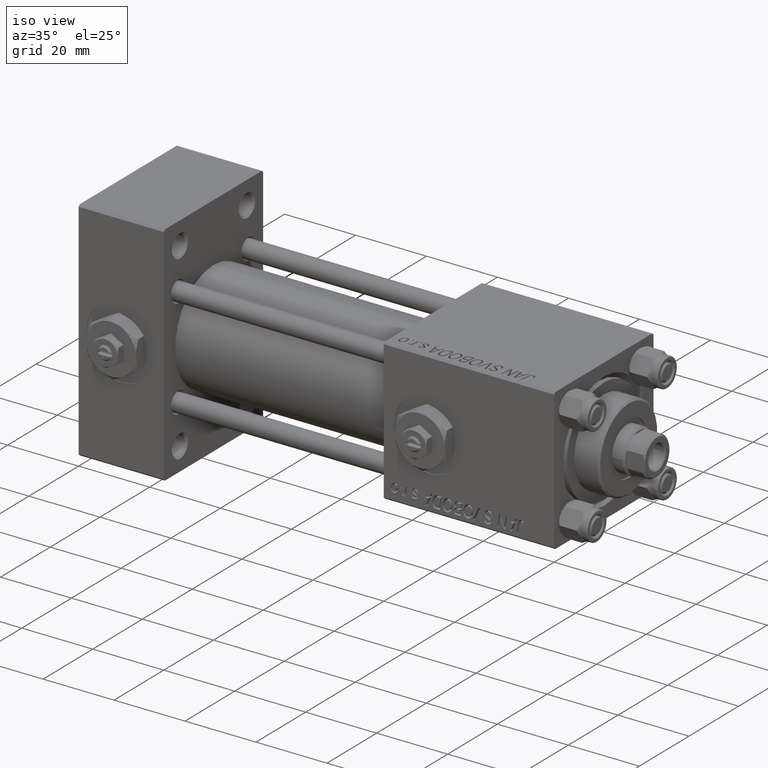
[diagram: clean part render]
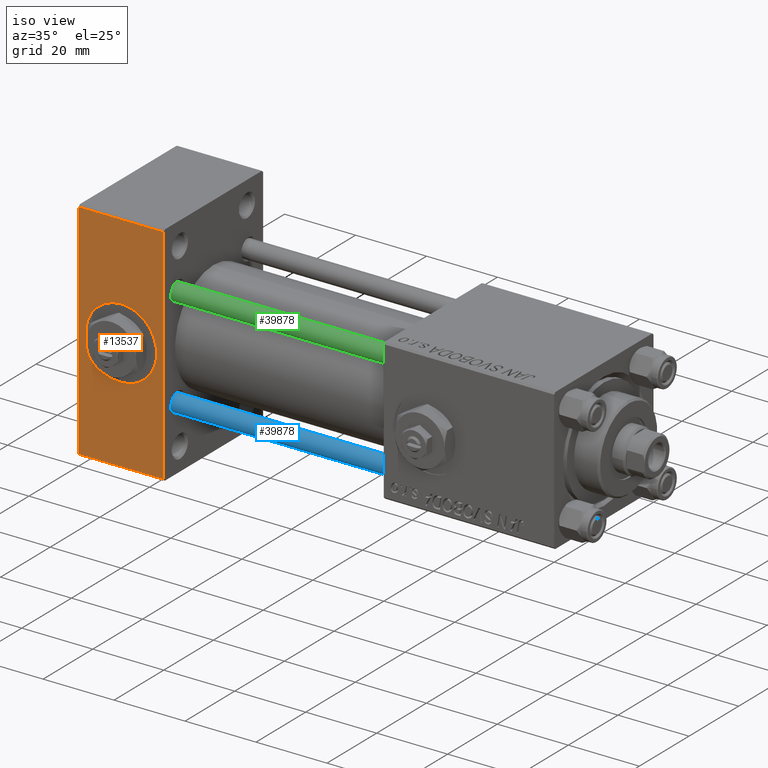
[diagram: same view with three faces highlighted in distinct colors, each labeled with its STEP entity id]
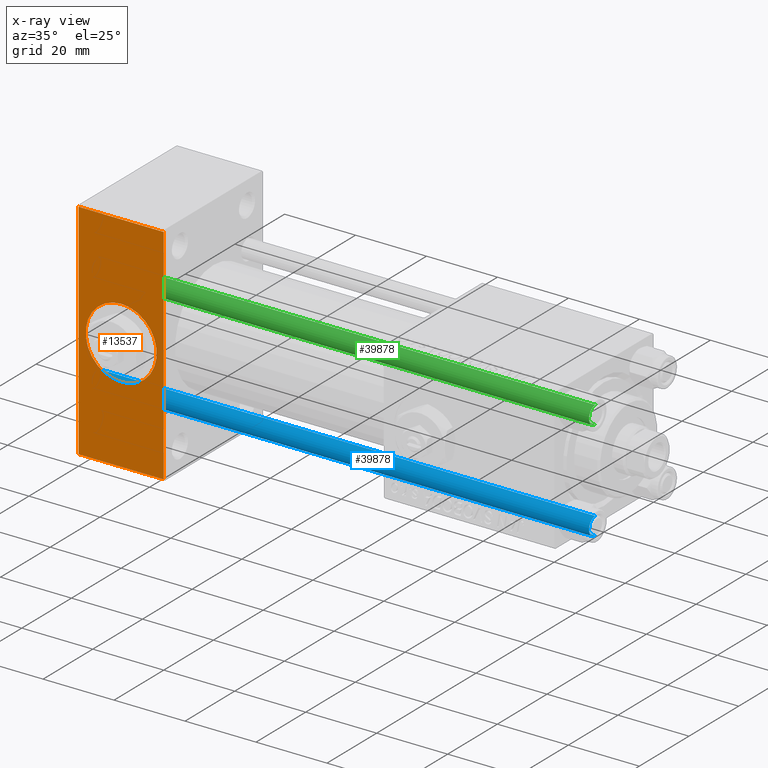
[diagram: x-ray of the same camera — body ghosted, the three highlighted faces saturated]
A machine part, iso view with three faces highlighted in distinct colors.
The next image is the same camera in x-ray (body ghosted, the three faces saturated) — at least one of them is partly hidden behind the body in this view.
Their STEP definitions:

[orange] entity #13537 — the highlighted planar face has unit normal (0, 1, 0).
#81 = VECTOR ( 'NONE', #45482, 1000.000000000000000 ) ;
#1254 = FACE_BOUND ( 'NONE', #21368, .T. ) ;
#2098 = ORIENTED_EDGE ( 'NONE', *, *, #17185, .F. ) ;
#3009 = DIRECTION ( 'NONE',  ( 1.000000000000000000, 0.000000000000000000, 0.000000000000000000 ) ) ;
#4878 = EDGE_CURVE ( 'NONE', #16969, #24132, #29476, .T. ) ;
#5906 = CIRCLE ( 'NONE', #48660, 9.999999999999996447 ) ;
#7896 = CARTESIAN_POINT ( 'NONE',  ( 24.00000000000000000, -20.00000000000000355, -31.49999999999997158 ) ) ;
#8087 = DIRECTION ( 'NONE',  ( 0.000000000000000000, 0.000000000000000000, -1.000000000000000000 ) ) ;
#8380 = DIRECTION ( 'NONE',  ( 0.000000000000000000, -1.000000000000000000, -8.673617379884036705E-17 ) ) ;
#8387 = EDGE_CURVE ( 'NONE', #16969, #45608, #36381, .T. ) ;
#9762 = ORIENTED_EDGE ( 'NONE', *, *, #8387, .F. ) ;
#10147 = FACE_OUTER_BOUND ( 'NONE', #31763, .T. ) ;
#10228 = CARTESIAN_POINT ( 'NONE',  ( 0.000000000000000000, -20.00000000000000355, 32.00000000000000000 ) ) ;
#10599 = VERTEX_POINT ( 'NONE', #50744 ) ;
#12192 = VECTOR ( 'NONE', #46454, 1000.000000000000000 ) ;
#12263 = AXIS2_PLACEMENT_3D ( 'NONE', #31966, #44040, #8087 ) ;
#12557 = ORIENTED_EDGE ( 'NONE', *, *, #33311, .T. ) ;
#13307 = PLANE ( 'NONE',  #27179 ) ;
#13537 = ADVANCED_FACE ( 'NONE', ( #1254, #10147 ), #13307, .F. ) ;
#15673 = CARTESIAN_POINT ( 'NONE',  ( 24.00000000000000000, -20.00000000000000355, 32.00000000000000000 ) ) ;
#16969 = VERTEX_POINT ( 'NONE', #50108 ) ;
#16974 = CARTESIAN_POINT ( 'NONE',  ( 12.00000000000000178, -20.00000000000000355, 9.999999999999996447 ) ) ;
#17185 = EDGE_CURVE ( 'NONE', #10599, #38393, #37401, .T. ) ;
#21368 = EDGE_LOOP ( 'NONE', ( #2098, #37546 ) ) ;
#22230 = LINE ( 'NONE', #38249, #38689 ) ;
#22980 = ORIENTED_EDGE ( 'NONE', *, *, #45755, .T. ) ;
#23536 = DIRECTION ( 'NONE',  ( 0.000000000000000000, 0.000000000000000000, -1.000000000000000000 ) ) ;
#24132 = VERTEX_POINT ( 'NONE', #30154 ) ;
#25789 = CARTESIAN_POINT ( 'NONE',  ( 24.00000000000000000, -20.00000000000000355, 31.50000000000000711 ) ) ;
#27179 = AXIS2_PLACEMENT_3D ( 'NONE', #41913, #29320, #37462 ) ;
#29320 = DIRECTION ( 'NONE',  ( -0.000000000000000000, 1.000000000000000000, 0.000000000000000000 ) ) ;
#29476 = LINE ( 'NONE', #25789, #81 ) ;
#30154 = CARTESIAN_POINT ( 'NONE',  ( 0.000000000000000000, -20.00000000000000355, 31.50000000000000711 ) ) ;
#30277 = EDGE_CURVE ( 'NONE', #38393, #10599, #5906, .T. ) ;
#31763 = EDGE_LOOP ( 'NONE', ( #22980, #12557, #9762, #33598 ) ) ;
#31966 = CARTESIAN_POINT ( 'NONE',  ( 12.00000000000000000, -20.00000000000000355, 0.000000000000000000 ) ) ;
#32210 = VERTEX_POINT ( 'NONE', #32543 ) ;
#32543 = CARTESIAN_POINT ( 'NONE',  ( 0.000000000000000000, -20.00000000000000355, -31.49999999999997158 ) ) ;
#32783 = DIRECTION ( 'NONE',  ( 0.000000000000000000, 0.000000000000000000, -1.000000000000000000 ) ) ;
#33311 = EDGE_CURVE ( 'NONE', #32210, #45608, #22230, .T. ) ;
#33598 = ORIENTED_EDGE ( 'NONE', *, *, #4878, .T. ) ;
#36381 = LINE ( 'NONE', #15673, #45454 ) ;
#37401 = CIRCLE ( 'NONE', #12263, 9.999999999999996447 ) ;
#37462 = DIRECTION ( 'NONE',  ( 0.000000000000000000, -0.000000000000000000, 1.000000000000000000 ) ) ;
#37546 = ORIENTED_EDGE ( 'NONE', *, *, #30277, .F. ) ;
#38249 = CARTESIAN_POINT ( 'NONE',  ( 24.00000000000000000, -20.00000000000000355, -31.49999999999997158 ) ) ;
#38393 = VERTEX_POINT ( 'NONE', #16974 ) ;
#38689 = VECTOR ( 'NONE', #3009, 1000.000000000000000 ) ;
#41913 = CARTESIAN_POINT ( 'NONE',  ( 24.00000000000000000, -20.00000000000000355, 32.00000000000000000 ) ) ;
#44040 = DIRECTION ( 'NONE',  ( 0.000000000000000000, -1.000000000000000000, -8.673617379884036705E-17 ) ) ;
#45454 = VECTOR ( 'NONE', #23536, 1000.000000000000000 ) ;
#45482 = DIRECTION ( 'NONE',  ( -1.000000000000000000, 0.000000000000000000, 0.000000000000000000 ) ) ;
#45608 = VERTEX_POINT ( 'NONE', #7896 ) ;
#45755 = EDGE_CURVE ( 'NONE', #24132, #32210, #45931, .T. ) ;
#45931 = LINE ( 'NONE', #10228, #12192 ) ;
#46454 = DIRECTION ( 'NONE',  ( 0.000000000000000000, 0.000000000000000000, -1.000000000000000000 ) ) ;
#48287 = CARTESIAN_POINT ( 'NONE',  ( 12.00000000000000000, -20.00000000000000355, 0.000000000000000000 ) ) ;
#48660 = AXIS2_PLACEMENT_3D ( 'NONE', #48287, #8380, #32783 ) ;
#50108 = CARTESIAN_POINT ( 'NONE',  ( 24.00000000000000000, -20.00000000000000355, 31.50000000000000711 ) ) ;
#50744 = CARTESIAN_POINT ( 'NONE',  ( 12.00000000000000000, -20.00000000000000355, -9.999999999999996447 ) ) ;

[blue] entity #39878 — the highlighted cylindrical surface (edge-blend (fillet) strip) has radius 2.5 mm, axis along (1, -0, -0).
#5183 = CARTESIAN_POINT ( 'NONE',  ( -2.500000000000000000, 0.000000000000000000, 0.5000000000000004441 ) ) ;
#7014 = CARTESIAN_POINT ( 'NONE',  ( -2.500000000000000000, 0.000000000000000000, 140.5000000000000000 ) ) ;
#7045 = DIRECTION ( 'NONE',  ( 0.000000000000000000, 0.000000000000000000, -1.000000000000000000 ) ) ;
#8292 = VERTEX_POINT ( 'NONE', #7014 ) ;
#8374 = ORIENTED_EDGE ( 'NONE', *, *, #17544, .T. ) ;
#8479 = CARTESIAN_POINT ( 'NONE',  ( 2.500000000000000000, 3.061616997868383141E-16, 141.0000000000000000 ) ) ;
#9756 = DIRECTION ( 'NONE',  ( -0.000000000000000000, -0.000000000000000000, -1.000000000000000000 ) ) ;
#10972 = CARTESIAN_POINT ( 'NONE',  ( 0.000000000000000000, 0.000000000000000000, 140.5000000000000000 ) ) ;
#11123 = CARTESIAN_POINT ( 'NONE',  ( -2.500000000000000000, 0.000000000000000000, 141.0000000000000000 ) ) ;
#12349 = EDGE_CURVE ( 'NONE', #14977, #13460, #12933, .T. ) ;
#12933 = LINE ( 'NONE', #8479, #48074 ) ;
#13394 = VERTEX_POINT ( 'NONE', #5183 ) ;
#13460 = VERTEX_POINT ( 'NONE', #49014 ) ;
#14091 = ORIENTED_EDGE ( 'NONE', *, *, #43916, .T. ) ;
#14977 = VERTEX_POINT ( 'NONE', #26302 ) ;
#17544 = EDGE_CURVE ( 'NONE', #13394, #13460, #49127, .T. ) ;
#19683 = ORIENTED_EDGE ( 'NONE', *, *, #12349, .F. ) ;
#26302 = CARTESIAN_POINT ( 'NONE',  ( 2.500000000000000000, 3.061616997868383141E-16, 140.5000000000000000 ) ) ;
#27228 = CIRCLE ( 'NONE', #50682, 2.500000000000000000 ) ;
#29251 = CARTESIAN_POINT ( 'NONE',  ( 0.000000000000000000, 0.000000000000000000, 0.5000000000000004441 ) ) ;
#30601 = VECTOR ( 'NONE', #51034, 1000.000000000000000 ) ;
#31715 = DIRECTION ( 'NONE',  ( 1.000000000000000000, 0.000000000000000000, 0.000000000000000000 ) ) ;
#33193 = DIRECTION ( 'NONE',  ( -0.000000000000000000, -0.000000000000000000, 1.000000000000000000 ) ) ;
#34151 = CARTESIAN_POINT ( 'NONE',  ( 0.000000000000000000, 0.000000000000000000, 141.0000000000000000 ) ) ;
#35377 = FACE_OUTER_BOUND ( 'NONE', #35415, .T. ) ;
#35415 = EDGE_LOOP ( 'NONE', ( #19683, #14091, #51679, #8374 ) ) ;
#38094 = CYLINDRICAL_SURFACE ( 'NONE', #40476, 2.500000000000000000 ) ;
#39878 = ADVANCED_FACE ( 'NONE', ( #35377 ), #38094, .T. ) ;
#40476 = AXIS2_PLACEMENT_3D ( 'NONE', #34151, #9756, #51404 ) ;
#41597 = AXIS2_PLACEMENT_3D ( 'NONE', #29251, #33193, #45003 ) ;
#43916 = EDGE_CURVE ( 'NONE', #14977, #8292, #27228, .T. ) ;
#45003 = DIRECTION ( 'NONE',  ( 1.000000000000000000, 0.000000000000000000, 0.000000000000000000 ) ) ;
#45317 = EDGE_CURVE ( 'NONE', #8292, #13394, #46831, .T. ) ;
#46831 = LINE ( 'NONE', #11123, #30601 ) ;
#48074 = VECTOR ( 'NONE', #51810, 1000.000000000000000 ) ;
#49014 = CARTESIAN_POINT ( 'NONE',  ( 2.500000000000000000, 3.061616997868383141E-16, 0.5000000000000004441 ) ) ;
#49127 = CIRCLE ( 'NONE', #41597, 2.500000000000000000 ) ;
#50682 = AXIS2_PLACEMENT_3D ( 'NONE', #10972, #7045, #31715 ) ;
#51034 = DIRECTION ( 'NONE',  ( -0.000000000000000000, -0.000000000000000000, -1.000000000000000000 ) ) ;
#51404 = DIRECTION ( 'NONE',  ( -1.000000000000000000, 0.000000000000000000, 0.000000000000000000 ) ) ;
#51679 = ORIENTED_EDGE ( 'NONE', *, *, #45317, .T. ) ;
#51810 = DIRECTION ( 'NONE',  ( -0.000000000000000000, -0.000000000000000000, -1.000000000000000000 ) ) ;

[green] entity #39878 — the highlighted cylindrical surface (edge-blend (fillet) strip) has radius 2.5 mm, axis along (-1, 0, -0).
#5183 = CARTESIAN_POINT ( 'NONE',  ( -2.500000000000000000, 0.000000000000000000, 0.5000000000000004441 ) ) ;
#7014 = CARTESIAN_POINT ( 'NONE',  ( -2.500000000000000000, 0.000000000000000000, 140.5000000000000000 ) ) ;
#7045 = DIRECTION ( 'NONE',  ( 0.000000000000000000, 0.000000000000000000, -1.000000000000000000 ) ) ;
#8292 = VERTEX_POINT ( 'NONE', #7014 ) ;
#8374 = ORIENTED_EDGE ( 'NONE', *, *, #17544, .T. ) ;
#8479 = CARTESIAN_POINT ( 'NONE',  ( 2.500000000000000000, 3.061616997868383141E-16, 141.0000000000000000 ) ) ;
#9756 = DIRECTION ( 'NONE',  ( -0.000000000000000000, -0.000000000000000000, -1.000000000000000000 ) ) ;
#10972 = CARTESIAN_POINT ( 'NONE',  ( 0.000000000000000000, 0.000000000000000000, 140.5000000000000000 ) ) ;
#11123 = CARTESIAN_POINT ( 'NONE',  ( -2.500000000000000000, 0.000000000000000000, 141.0000000000000000 ) ) ;
#12349 = EDGE_CURVE ( 'NONE', #14977, #13460, #12933, .T. ) ;
#12933 = LINE ( 'NONE', #8479, #48074 ) ;
#13394 = VERTEX_POINT ( 'NONE', #5183 ) ;
#13460 = VERTEX_POINT ( 'NONE', #49014 ) ;
#14091 = ORIENTED_EDGE ( 'NONE', *, *, #43916, .T. ) ;
#14977 = VERTEX_POINT ( 'NONE', #26302 ) ;
#17544 = EDGE_CURVE ( 'NONE', #13394, #13460, #49127, .T. ) ;
#19683 = ORIENTED_EDGE ( 'NONE', *, *, #12349, .F. ) ;
#26302 = CARTESIAN_POINT ( 'NONE',  ( 2.500000000000000000, 3.061616997868383141E-16, 140.5000000000000000 ) ) ;
#27228 = CIRCLE ( 'NONE', #50682, 2.500000000000000000 ) ;
#29251 = CARTESIAN_POINT ( 'NONE',  ( 0.000000000000000000, 0.000000000000000000, 0.5000000000000004441 ) ) ;
#30601 = VECTOR ( 'NONE', #51034, 1000.000000000000000 ) ;
#31715 = DIRECTION ( 'NONE',  ( 1.000000000000000000, 0.000000000000000000, 0.000000000000000000 ) ) ;
#33193 = DIRECTION ( 'NONE',  ( -0.000000000000000000, -0.000000000000000000, 1.000000000000000000 ) ) ;
#34151 = CARTESIAN_POINT ( 'NONE',  ( 0.000000000000000000, 0.000000000000000000, 141.0000000000000000 ) ) ;
#35377 = FACE_OUTER_BOUND ( 'NONE', #35415, .T. ) ;
#35415 = EDGE_LOOP ( 'NONE', ( #19683, #14091, #51679, #8374 ) ) ;
#38094 = CYLINDRICAL_SURFACE ( 'NONE', #40476, 2.500000000000000000 ) ;
#39878 = ADVANCED_FACE ( 'NONE', ( #35377 ), #38094, .T. ) ;
#40476 = AXIS2_PLACEMENT_3D ( 'NONE', #34151, #9756, #51404 ) ;
#41597 = AXIS2_PLACEMENT_3D ( 'NONE', #29251, #33193, #45003 ) ;
#43916 = EDGE_CURVE ( 'NONE', #14977, #8292, #27228, .T. ) ;
#45003 = DIRECTION ( 'NONE',  ( 1.000000000000000000, 0.000000000000000000, 0.000000000000000000 ) ) ;
#45317 = EDGE_CURVE ( 'NONE', #8292, #13394, #46831, .T. ) ;
#46831 = LINE ( 'NONE', #11123, #30601 ) ;
#48074 = VECTOR ( 'NONE', #51810, 1000.000000000000000 ) ;
#49014 = CARTESIAN_POINT ( 'NONE',  ( 2.500000000000000000, 3.061616997868383141E-16, 0.5000000000000004441 ) ) ;
#49127 = CIRCLE ( 'NONE', #41597, 2.500000000000000000 ) ;
#50682 = AXIS2_PLACEMENT_3D ( 'NONE', #10972, #7045, #31715 ) ;
#51034 = DIRECTION ( 'NONE',  ( -0.000000000000000000, -0.000000000000000000, -1.000000000000000000 ) ) ;
#51404 = DIRECTION ( 'NONE',  ( -1.000000000000000000, 0.000000000000000000, 0.000000000000000000 ) ) ;
#51679 = ORIENTED_EDGE ( 'NONE', *, *, #45317, .T. ) ;
#51810 = DIRECTION ( 'NONE',  ( -0.000000000000000000, -0.000000000000000000, -1.000000000000000000 ) ) ;